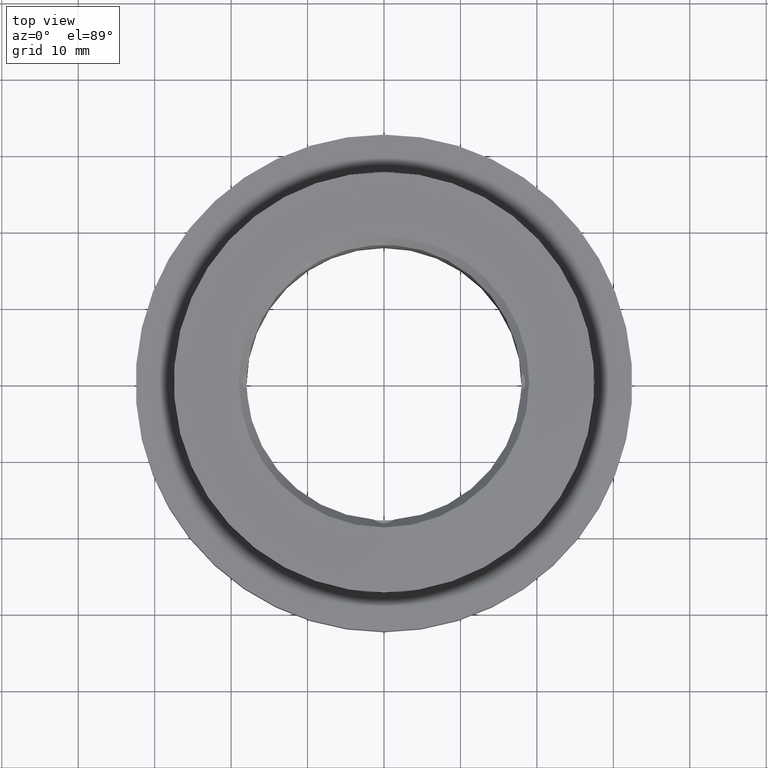
[diagram: clean part render]
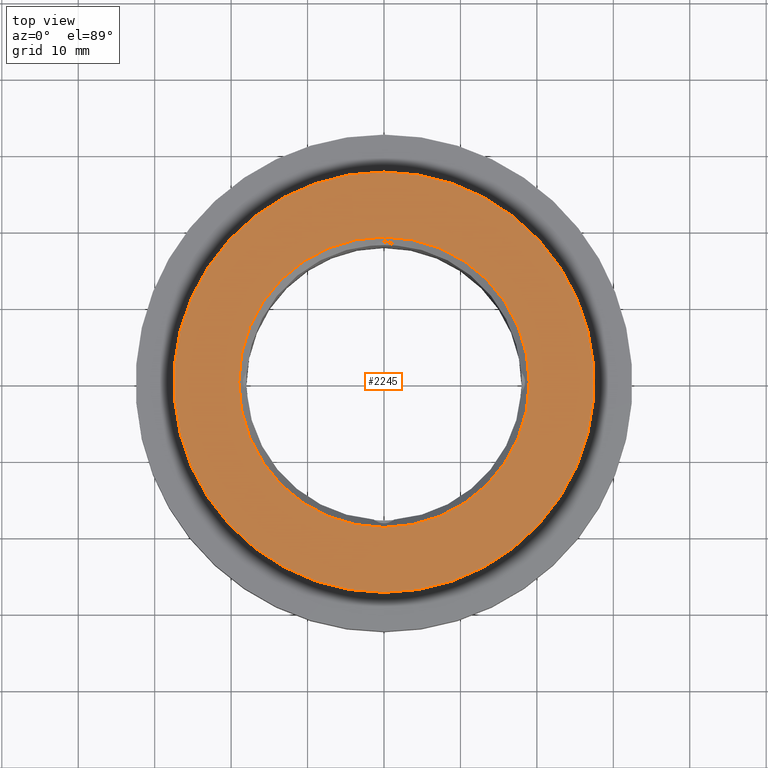
[diagram: same view with one face highlighted and labeled with its STEP entity id]
A machine part, top view. The second image highlights one B-rep face of the part: STEP entity #2245.
In plain terms, the highlighted planar face has unit normal (0, 0, -1).
Its self-contained STEP definition (entity closure, byte-faithful):
#59 = DIRECTION ( 'NONE',  ( 0.000000000000000000, 1.836970198721029441E-16, -1.000000000000000000 ) ) ;
#222 = DIRECTION ( 'NONE',  ( 0.000000000000000000, 1.000000000000000000, 1.836970198721029441E-16 ) ) ;
#553 = CARTESIAN_POINT ( 'NONE',  ( 0.000000000000000000, 0.000000000000000000, 13.49999999999999822 ) ) ;
#1540 = PLANE ( 'NONE',  #12374 ) ;
#1595 = CARTESIAN_POINT ( 'NONE',  ( 0.000000000000000000, 27.50000000000000000, 13.50000000000000355 ) ) ;
#1923 = DIRECTION ( 'NONE',  ( -0.000000000000000000, -1.836970198721029441E-16, 1.000000000000000000 ) ) ;
#2102 = ORIENTED_EDGE ( 'NONE', *, *, #17405, .T. ) ;
#2105 = CARTESIAN_POINT ( 'NONE',  ( 0.000000000000000000, -4.959819536546779811E-15, 13.49999999999999822 ) ) ;
#2245 = ADVANCED_FACE ( 'NONE', ( #13066, #13690 ), #1540, .F. ) ;
#2607 = CARTESIAN_POINT ( 'NONE',  ( 0.000000000000000000, 0.000000000000000000, 13.49999999999999822 ) ) ;
#2613 = DIRECTION ( 'NONE',  ( -0.000000000000000000, -1.836970198721029441E-16, 1.000000000000000000 ) ) ;
#2815 = ORIENTED_EDGE ( 'NONE', *, *, #7755, .T. ) ;
#2915 = VERTEX_POINT ( 'NONE', #17189 ) ;
#4151 = CIRCLE ( 'NONE', #4281, 27.50000000000000355 ) ;
#4281 = AXIS2_PLACEMENT_3D ( 'NONE', #2105, #1923, #7329 ) ;
#4762 = CARTESIAN_POINT ( 'NONE',  ( 3.367778697655222096E-15, 27.50000000000000000, 13.50000000000000355 ) ) ;
#5022 = DIRECTION ( 'NONE',  ( 0.000000000000000000, 1.000000000000000000, 1.826024711554534406E-16 ) ) ;
#6121 = DIRECTION ( 'NONE',  ( 0.000000000000000000, 1.000000000000000000, 1.826024711554534406E-16 ) ) ;
#6159 = CARTESIAN_POINT ( 'NONE',  ( -18.99999999999999289, 2.326828918379970182E-15, 13.49999999999999822 ) ) ;
#6987 = AXIS2_PLACEMENT_3D ( 'NONE', #553, #7391, #6121 ) ;
#7329 = DIRECTION ( 'NONE',  ( 0.000000000000000000, -1.000000000000000000, -1.892425610156516629E-16 ) ) ;
#7391 = DIRECTION ( 'NONE',  ( 0.000000000000000000, 1.836970198721029441E-16, -1.000000000000000000 ) ) ;
#7755 = EDGE_CURVE ( 'NONE', #16478, #16458, #12963, .T. ) ;
#9444 = EDGE_LOOP ( 'NONE', ( #2815, #2102 ) ) ;
#9540 = DIRECTION ( 'NONE',  ( 0.000000000000000000, -1.000000000000000000, -1.892425610156516629E-16 ) ) ;
#9730 = CIRCLE ( 'NONE', #6987, 18.99999999999999289 ) ;
#10670 = DIRECTION ( 'NONE',  ( 0.000000000000000000, 1.836970198721029441E-16, -1.000000000000000000 ) ) ;
#11224 = EDGE_CURVE ( 'NONE', #16898, #2915, #4151, .T. ) ;
#11448 = CARTESIAN_POINT ( 'NONE',  ( 18.99999999999999289, 0.000000000000000000, 13.49999999999999822 ) ) ;
#11451 = EDGE_LOOP ( 'NONE', ( #12723, #13945 ) ) ;
#12374 = AXIS2_PLACEMENT_3D ( 'NONE', #1595, #59, #222 ) ;
#12723 = ORIENTED_EDGE ( 'NONE', *, *, #16611, .T. ) ;
#12963 = CIRCLE ( 'NONE', #13644, 18.99999999999999289 ) ;
#13066 = FACE_BOUND ( 'NONE', #9444, .T. ) ;
#13644 = AXIS2_PLACEMENT_3D ( 'NONE', #2607, #10670, #5022 ) ;
#13690 = FACE_OUTER_BOUND ( 'NONE', #11451, .T. ) ;
#13945 = ORIENTED_EDGE ( 'NONE', *, *, #11224, .T. ) ;
#14829 = CARTESIAN_POINT ( 'NONE',  ( 0.000000000000000000, -4.959819536546779811E-15, 13.49999999999999822 ) ) ;
#15426 = AXIS2_PLACEMENT_3D ( 'NONE', #14829, #2613, #9540 ) ;
#16458 = VERTEX_POINT ( 'NONE', #6159 ) ;
#16478 = VERTEX_POINT ( 'NONE', #11448 ) ;
#16611 = EDGE_CURVE ( 'NONE', #2915, #16898, #17341, .T. ) ;
#16898 = VERTEX_POINT ( 'NONE', #4762 ) ;
#17189 = CARTESIAN_POINT ( 'NONE',  ( 0.000000000000000000, -27.50000000000000711, 13.49999999999999289 ) ) ;
#17341 = CIRCLE ( 'NONE', #15426, 27.50000000000000355 ) ;
#17405 = EDGE_CURVE ( 'NONE', #16458, #16478, #9730, .T. ) ;